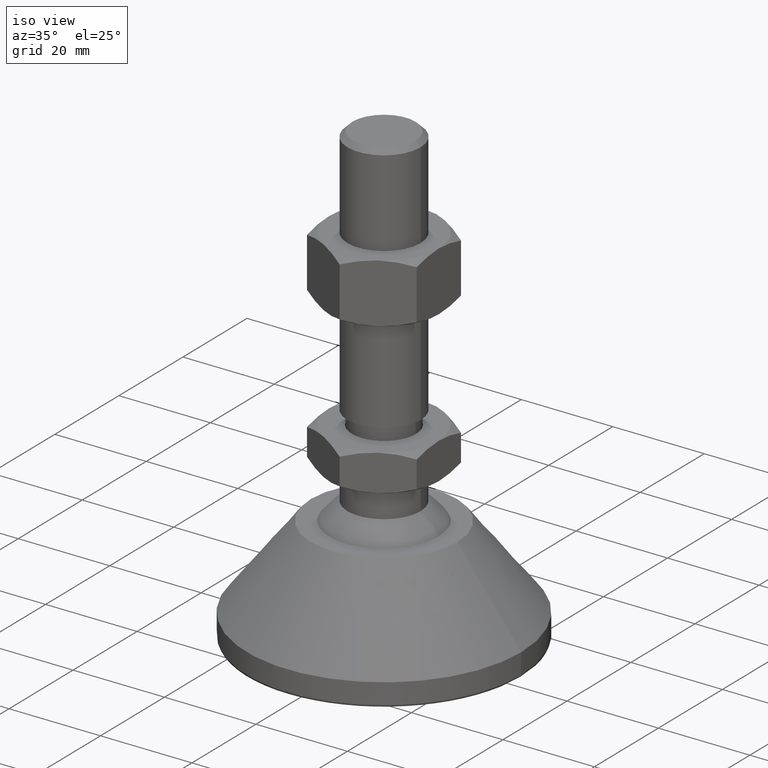
[diagram: clean part render]
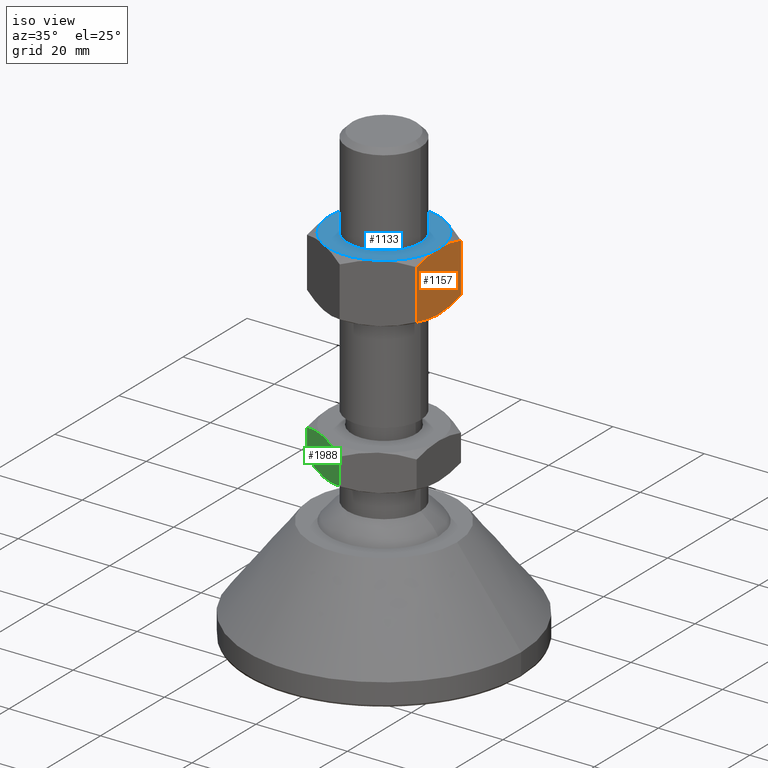
[diagram: same view with three faces highlighted in distinct colors, each labeled with its STEP entity id]
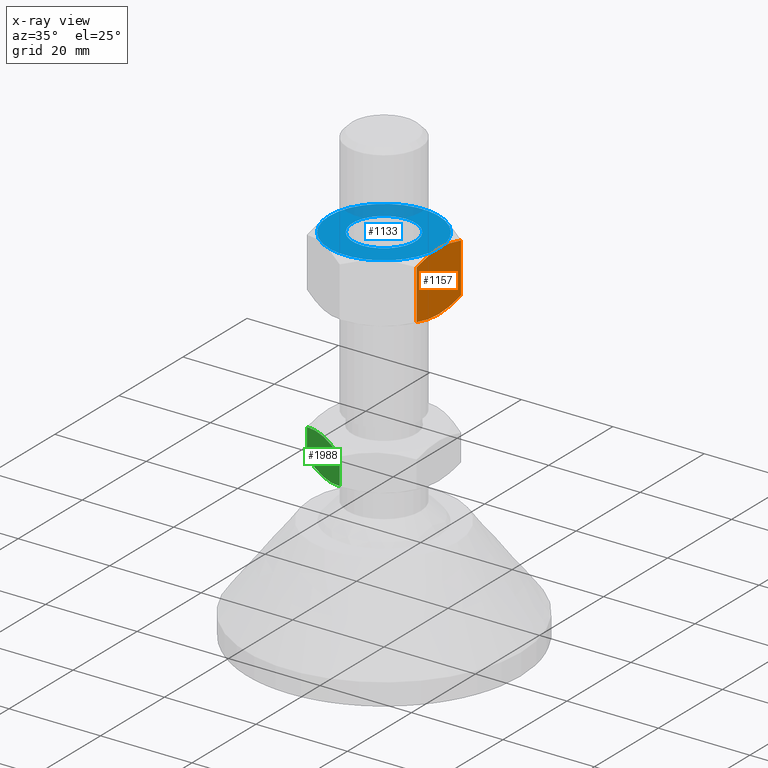
[diagram: x-ray of the same camera — body ghosted, the three highlighted faces saturated]
A machine part, iso view with three faces highlighted in distinct colors.
The next image is the same camera in x-ray (body ghosted, the three faces saturated) — at least one of them is partly hidden behind the body in this view.
Their STEP definitions:

[orange] entity #1157 — the highlighted planar face has unit normal (1, 0, 0).
#521=CARTESIAN_POINT('',(12.000000000000114,4.102567E-015,67.000000333786488));
#522=VERTEX_POINT('',#521);
#686=CARTESIAN_POINT('',(11.999999999993406,6.928203230271630,68.071797119792677));
#687=VERTEX_POINT('',#686);
#697=CARTESIAN_POINT('',(11.999999999996703,6.928203230273571,68.071797119792677));
#698=CARTESIAN_POINT('',(11.999999999996703,5.723738646605775,67.724098138704335));
#699=CARTESIAN_POINT('',(12.000000000003752,3.946936987728388,67.309900270951289));
#700=CARTESIAN_POINT('',(11.999999999995794,1.615955297633616,67.041620584445241));
#701=CARTESIAN_POINT('',(12.000000000000114,0.525552683232047,67.000000333786488));
#702=CARTESIAN_POINT('',(12.000000000000114,4.708679E-015,67.000000333786488));
#703=B_SPLINE_CURVE_WITH_KNOTS('',3,(#697,#698,#699,#700,#701,#702),.UNSPECIFIED.,.F.,.U.,(4,1,1,4),(0.0,3.763629233058143,5.457301525397262,7.034327279468988),.UNSPECIFIED.);
#704=EDGE_CURVE('',#687,#522,#703,.T.);
#762=CARTESIAN_POINT('',(11.999999999993406,-6.928203230271620,68.071797119792677));
#763=VERTEX_POINT('',#762);
#764=CARTESIAN_POINT('',(12.000000000000114,4.708679E-015,67.000000333786488));
#765=CARTESIAN_POINT('',(12.000000000000114,-0.565091010810808,67.000000333786488));
#766=CARTESIAN_POINT('',(12.000000000000114,-1.783453613484522,67.050033966843444));
#767=CARTESIAN_POINT('',(12.000000000000341,-4.111601830371786,67.345243538893897));
#768=CARTESIAN_POINT('',(11.999999999996703,-5.846355821468992,67.759494668699404));
#769=CARTESIAN_POINT('',(11.999999999996703,-6.928203230273561,68.071797119792677));
#770=B_SPLINE_CURVE_WITH_KNOTS('',3,(#764,#765,#766,#767,#768,#769),.UNSPECIFIED.,.F.,.U.,(4,1,1,4),(0.0,1.695728221161082,3.654394585990104,7.034329373899527),.UNSPECIFIED.);
#771=EDGE_CURVE('',#522,#763,#770,.T.);
#978=CARTESIAN_POINT('',(12.000000000000114,4.898587E-015,80.000000333786488));
#979=VERTEX_POINT('',#978);
#987=CARTESIAN_POINT('',(12.000000000000114,6.928203230275511,78.928203500564905));
#988=VERTEX_POINT('',#987);
#989=CARTESIAN_POINT('',(12.000000000000114,6.928203230275511,78.928203500564905));
#990=CARTESIAN_POINT('',(12.000000000000114,5.650707038787965,79.296984907434876));
#991=CARTESIAN_POINT('',(11.999999999994770,3.811504235427180,79.719497188388345));
#992=CARTESIAN_POINT('',(12.000000000000909,1.478107516373134,79.965879149994294));
#993=CARTESIAN_POINT('',(12.000000000000114,0.463965163884797,80.000000333786488));
#994=CARTESIAN_POINT('',(12.000000000000114,5.902697E-015,80.000000333786488));
#995=B_SPLINE_CURVE_WITH_KNOTS('',3,(#989,#990,#991,#992,#993,#994),.UNSPECIFIED.,.F.,.U.,(4,1,1,4),(0.0,3.992271389775869,5.642176802470205,7.034326556610837),.UNSPECIFIED.);
#996=EDGE_CURVE('',#988,#979,#995,.T.);
#1033=CARTESIAN_POINT('',(12.000000000000114,-6.928203230275500,78.928203500564905));
#1034=VERTEX_POINT('',#1033);
#1044=CARTESIAN_POINT('',(12.000000000000114,5.902697E-015,80.000000333786488));
#1045=CARTESIAN_POINT('',(12.000000000000114,-0.539204893124856,80.000000333786488));
#1046=CARTESIAN_POINT('',(12.000000000000114,-1.652754878256069,79.956378268865365));
#1047=CARTESIAN_POINT('',(12.000000000000114,-3.983087263120050,79.682251822505009));
#1048=CARTESIAN_POINT('',(12.000000000000114,-5.745912522043370,79.269501450113808));
#1049=CARTESIAN_POINT('',(12.000000000000114,-6.928203230275501,78.928203500564905));
#1050=B_SPLINE_CURVE_WITH_KNOTS('',3,(#1044,#1045,#1046,#1047,#1048,#1049),.UNSPECIFIED.,.F.,.U.,(4,1,1,4),(0.0,1.618012439727994,3.340103688112834,7.034330258773023),.UNSPECIFIED.);
#1051=EDGE_CURVE('',#979,#1034,#1050,.T.);
#1134=CARTESIAN_POINT('',(12.000000000000114,-6.928203230275503,67.000000333786488));
#1135=DIRECTION('',(1.0,0.0,0.0));
#1136=DIRECTION('',(0.0,1.0,0.0));
#1137=AXIS2_PLACEMENT_3D('',#1134,#1135,#1136);
#1138=PLANE('',#1137);
#1139=ORIENTED_EDGE('',*,*,#704,.F.);
#1140=CARTESIAN_POINT('',(12.000000000000114,6.928203230275511,68.071797119792677));
#1141=DIRECTION('',(0.0,0.0,1.0));
#1142=VECTOR('',#1141,10.856406380772285);
#1143=LINE('',#1140,#1142);
#1144=EDGE_CURVE('',#687,#988,#1143,.T.);
#1145=ORIENTED_EDGE('',*,*,#1144,.T.);
#1146=ORIENTED_EDGE('',*,*,#996,.T.);
#1147=ORIENTED_EDGE('',*,*,#1051,.T.);
#1148=CARTESIAN_POINT('',(12.000000000000114,-6.928203230275503,68.071797119792677));
#1149=DIRECTION('',(0.0,0.0,1.0));
#1150=VECTOR('',#1149,10.856406380772285);
#1151=LINE('',#1148,#1150);
#1152=EDGE_CURVE('',#763,#1034,#1151,.T.);
#1153=ORIENTED_EDGE('',*,*,#1152,.F.);
#1154=ORIENTED_EDGE('',*,*,#771,.F.);
#1155=EDGE_LOOP('',(#1139,#1145,#1146,#1147,#1153,#1154));
#1156=FACE_OUTER_BOUND('',#1155,.T.);
#1157=ADVANCED_FACE('',(#1156),#1138,.T.);

[blue] entity #1133 — the highlighted planar face has unit normal (0, 0, -1).
#838=CARTESIAN_POINT('',(-11.999999999999886,4.359896E-015,80.000000333786488));
#839=VERTEX_POINT('',#838);
#851=CARTESIAN_POINT('',(-5.999999999999886,-10.392304845413250,80.000000333786488));
#852=VERTEX_POINT('',#851);
#862=CARTESIAN_POINT('',(1.136868E-013,4.898587E-015,80.000000333786488));
#863=DIRECTION('',(-1.480297E-016,-6.123234E-017,-1.0));
#864=DIRECTION('',(-1.0,8.469061E-034,1.480297E-016));
#865=AXIS2_PLACEMENT_3D('',#862,#863,#864);
#866=CIRCLE('',#865,12.0);
#867=EDGE_CURVE('',#852,#839,#866,.T.);
#886=CARTESIAN_POINT('',(-5.999999999999886,10.392304845413255,80.000000333786488));
#887=VERTEX_POINT('',#886);
#888=CARTESIAN_POINT('',(1.136868E-013,4.898587E-015,80.000000333786488));
#889=DIRECTION('',(-1.480297E-016,-6.123234E-017,-1.0));
#890=DIRECTION('',(-1.0,8.469061E-034,1.480297E-016));
#891=AXIS2_PLACEMENT_3D('',#888,#889,#890);
#892=CIRCLE('',#891,12.0);
#893=EDGE_CURVE('',#839,#887,#892,.T.);
#932=CARTESIAN_POINT('',(6.000000000000114,10.392304845413268,80.000000333786488));
#933=VERTEX_POINT('',#932);
#954=CARTESIAN_POINT('',(1.136868E-013,4.898587E-015,80.000000333786488));
#955=DIRECTION('',(-1.480297E-016,-6.123234E-017,-1.0));
#956=DIRECTION('',(-1.0,8.469061E-034,1.480297E-016));
#957=AXIS2_PLACEMENT_3D('',#954,#955,#956);
#958=CIRCLE('',#957,12.0);
#959=EDGE_CURVE('',#887,#933,#958,.T.);
#978=CARTESIAN_POINT('',(12.000000000000114,4.898587E-015,80.000000333786488));
#979=VERTEX_POINT('',#978);
#980=CARTESIAN_POINT('',(1.136868E-013,4.898587E-015,80.000000333786488));
#981=DIRECTION('',(-1.480297E-016,-6.123234E-017,-1.0));
#982=DIRECTION('',(-1.0,8.469061E-034,1.480297E-016));
#983=AXIS2_PLACEMENT_3D('',#980,#981,#982);
#984=CIRCLE('',#983,12.0);
#985=EDGE_CURVE('',#933,#979,#984,.T.);
#1024=CARTESIAN_POINT('',(6.000000000000114,-10.392304845413257,80.000000333786488));
#1025=VERTEX_POINT('',#1024);
#1026=CARTESIAN_POINT('',(1.136868E-013,4.898587E-015,80.000000333786488));
#1027=DIRECTION('',(-1.480297E-016,-6.123234E-017,-1.0));
#1028=DIRECTION('',(-1.0,8.469061E-034,1.480297E-016));
#1029=AXIS2_PLACEMENT_3D('',#1026,#1027,#1028);
#1030=CIRCLE('',#1029,12.0);
#1031=EDGE_CURVE('',#979,#1025,#1030,.T.);
#1090=CARTESIAN_POINT('',(1.136868E-013,4.898587E-015,80.000000333786488));
#1091=DIRECTION('',(-1.480297E-016,-6.123234E-017,-1.0));
#1092=DIRECTION('',(-1.0,8.469061E-034,1.480297E-016));
#1093=AXIS2_PLACEMENT_3D('',#1090,#1091,#1092);
#1094=CIRCLE('',#1093,12.0);
#1095=EDGE_CURVE('',#1025,#852,#1094,.T.);
#1100=CARTESIAN_POINT('',(-23.999999999999886,-23.999999999999996,80.000000333786488));
#1101=DIRECTION('',(0.0,0.0,-1.0));
#1102=DIRECTION('',(0.0,1.0,0.0));
#1103=AXIS2_PLACEMENT_3D('',#1100,#1101,#1102);
#1104=PLANE('',#1103);
#1105=ORIENTED_EDGE('',*,*,#959,.F.);
#1106=ORIENTED_EDGE('',*,*,#893,.F.);
#1107=ORIENTED_EDGE('',*,*,#867,.F.);
#1108=ORIENTED_EDGE('',*,*,#1095,.F.);
#1109=ORIENTED_EDGE('',*,*,#1031,.F.);
#1110=ORIENTED_EDGE('',*,*,#985,.F.);
#1111=EDGE_LOOP('',(#1105,#1106,#1107,#1108,#1109,#1110));
#1112=FACE_OUTER_BOUND('',#1111,.T.);
#1113=CARTESIAN_POINT('',(1.136868E-013,-6.849999999999994,80.000000333786488));
#1114=VERTEX_POINT('',#1113);
#1115=CARTESIAN_POINT('',(1.136868E-013,6.850000000000005,80.000000333786488));
#1116=VERTEX_POINT('',#1115);
#1117=CARTESIAN_POINT('',(1.136868E-013,4.898587E-015,80.000000333786488));
#1118=DIRECTION('',(0.0,6.123234E-017,1.0));
#1119=DIRECTION('',(0.0,1.0,-6.123234E-017));
#1120=AXIS2_PLACEMENT_3D('',#1117,#1118,#1119);
#1121=CIRCLE('',#1120,6.850000000000000);
#1122=EDGE_CURVE('',#1114,#1116,#1121,.T.);
#1123=ORIENTED_EDGE('',*,*,#1122,.F.);
#1124=CARTESIAN_POINT('',(1.136868E-013,4.898587E-015,80.000000333786488));
#1125=DIRECTION('',(0.0,6.123234E-017,1.0));
#1126=DIRECTION('',(0.0,1.0,-6.123234E-017));
#1127=AXIS2_PLACEMENT_3D('',#1124,#1125,#1126);
#1128=CIRCLE('',#1127,6.850000000000000);
#1129=EDGE_CURVE('',#1116,#1114,#1128,.T.);
#1130=ORIENTED_EDGE('',*,*,#1129,.F.);
#1131=EDGE_LOOP('',(#1123,#1130));
#1132=FACE_BOUND('',#1131,.T.);
#1133=ADVANCED_FACE('',(#1112,#1132),#1104,.F.);

[green] entity #1988 — the highlighted planar face has unit normal (-0.5, -0.866, 0).
#1294=CARTESIAN_POINT('',(-5.999999999999886,-10.392304845413253,34.000000333786488));
#1295=VERTEX_POINT('',#1294);
#1404=CARTESIAN_POINT('',(-11.999999999996817,-6.928203230273760,35.071797119795178));
#1405=VERTEX_POINT('',#1404);
#1406=CARTESIAN_POINT('',(-5.999999999999886,-10.392304845413260,34.000000333786488));
#1407=CARTESIAN_POINT('',(-6.489001402938811,-10.109979753792349,34.000000333786488));
#1408=CARTESIAN_POINT('',(-7.541559054026948,-9.502285310599042,34.049872985224056));
#1409=CARTESIAN_POINT('',(-9.557843425403917,-8.338182986021609,34.344528375512709));
#1410=CARTESIAN_POINT('',(-11.060624110095887,-7.470552153180095,34.758671818402945));
#1411=CARTESIAN_POINT('',(-11.999999999998408,-6.928203230274628,35.071797119795178));
#1412=B_SPLINE_CURVE_WITH_KNOTS('',3,(#1406,#1407,#1408,#1409,#1410,#1411),.UNSPECIFIED.,.F.,.U.,(4,1,1,4),(0.0,1.694404685384265,3.645477384992637,7.034329381845756),.UNSPECIFIED.);
#1413=EDGE_CURVE('',#1295,#1405,#1412,.T.);
#1556=CARTESIAN_POINT('',(0.0,-13.856406460490801,35.071797119762437));
#1557=VERTEX_POINT('',#1556);
#1567=CARTESIAN_POINT('',(0.0,-13.856406460520914,35.071797119762437));
#1568=CARTESIAN_POINT('',(-1.043096927404122,-13.254174168693295,34.724098138677732));
#1569=CARTESIAN_POINT('',(-2.581852301284926,-12.365773338978984,34.309900270755975));
#1570=CARTESIAN_POINT('',(-4.600541660894351,-11.200282494283636,34.041620584479460));
#1571=CARTESIAN_POINT('',(-5.544858025293820,-10.655081187029301,34.000000333786488));
#1572=CARTESIAN_POINT('',(-5.999999999999886,-10.392304845413260,34.000000333786488));
#1573=B_SPLINE_CURVE_WITH_KNOTS('',3,(#1567,#1568,#1569,#1570,#1571,#1572),.UNSPECIFIED.,.F.,.U.,(4,1,1,4),(0.0,3.763629233010876,5.457301525378333,7.034327279450173),.UNSPECIFIED.);
#1574=EDGE_CURVE('',#1557,#1295,#1573,.T.);
#1595=CARTESIAN_POINT('',(-11.999999999999886,-6.928203230275500,40.928203500565019));
#1596=VERTEX_POINT('',#1595);
#1606=CARTESIAN_POINT('',(-5.999999999999886,-10.392304845413253,42.000000333786488));
#1607=VERTEX_POINT('',#1606);
#1608=CARTESIAN_POINT('',(-11.999999999999886,-6.928203230275497,40.928203500565019));
#1609=CARTESIAN_POINT('',(-10.956903073764579,-7.530435521428347,41.275902496575668));
#1610=CARTESIAN_POINT('',(-9.418147700132522,-8.418836350188256,41.690100382906053));
#1611=CARTESIAN_POINT('',(-7.399458339334615,-9.584327196547738,41.958380081244513));
#1612=CARTESIAN_POINT('',(-6.455141974718458,-10.129528503790020,42.000000333786488));
#1613=CARTESIAN_POINT('',(-5.999999999999886,-10.392304845413257,42.000000333786488));
#1614=B_SPLINE_CURVE_WITH_KNOTS('',3,(#1608,#1609,#1610,#1611,#1612,#1613),.UNSPECIFIED.,.F.,.U.,(4,1,1,4),(0.0,3.763629241763667,5.457301534559152,7.034327288706447),.UNSPECIFIED.);
#1615=EDGE_CURVE('',#1596,#1607,#1614,.T.);
#1825=CARTESIAN_POINT('',(1.136868E-013,-13.856406460551055,40.928203500564905));
#1826=VERTEX_POINT('',#1825);
#1827=CARTESIAN_POINT('',(-5.999999999999886,-10.392304845413257,42.000000333786488));
#1828=CARTESIAN_POINT('',(-5.510998597079379,-10.674629937023484,42.000000333786488));
#1829=CARTESIAN_POINT('',(-4.458440945897110,-11.282324380271195,41.950127680139758));
#1830=CARTESIAN_POINT('',(-2.442156573127932,-12.446426705651659,41.655472276647060));
#1831=CARTESIAN_POINT('',(-0.939375889162648,-13.314057538072689,41.241328815503152));
#1832=CARTESIAN_POINT('',(1.136868E-013,-13.856406460551041,40.928203500564905));
#1833=B_SPLINE_CURVE_WITH_KNOTS('',3,(#1827,#1828,#1829,#1830,#1831,#1832),.UNSPECIFIED.,.F.,.U.,(4,1,1,4),(0.0,1.694404685359915,3.645477385261614,7.034329391079479),.UNSPECIFIED.);
#1834=EDGE_CURVE('',#1607,#1826,#1833,.T.);
#1957=CARTESIAN_POINT('',(-11.999999999999886,-6.928203230275496,35.071797119795221));
#1958=DIRECTION('',(0.0,0.0,1.0));
#1959=VECTOR('',#1958,5.856406380769769);
#1960=LINE('',#1957,#1959);
#1961=EDGE_CURVE('',#1405,#1596,#1960,.T.);
#1970=CARTESIAN_POINT('',(-11.999999999999886,-6.928203230275496,34.000000333786488));
#1971=DIRECTION('',(-0.500000000000001,-0.866025403784438,5.302876E-017));
#1972=DIRECTION('',(0.866025403784438,-0.500000000000001,3.061617E-017));
#1973=AXIS2_PLACEMENT_3D('',#1970,#1971,#1972);
#1974=PLANE('',#1973);
#1975=ORIENTED_EDGE('',*,*,#1574,.F.);
#1976=CARTESIAN_POINT('',(1.136868E-013,-13.856406460551026,35.071797119762408));
#1977=DIRECTION('',(0.0,0.0,1.0));
#1978=VECTOR('',#1977,5.856406380802525);
#1979=LINE('',#1976,#1978);
#1980=EDGE_CURVE('',#1557,#1826,#1979,.T.);
#1981=ORIENTED_EDGE('',*,*,#1980,.T.);
#1982=ORIENTED_EDGE('',*,*,#1834,.F.);
#1983=ORIENTED_EDGE('',*,*,#1615,.F.);
#1984=ORIENTED_EDGE('',*,*,#1961,.F.);
#1985=ORIENTED_EDGE('',*,*,#1413,.F.);
#1986=EDGE_LOOP('',(#1975,#1981,#1982,#1983,#1984,#1985));
#1987=FACE_OUTER_BOUND('',#1986,.T.);
#1988=ADVANCED_FACE('',(#1987),#1974,.T.);